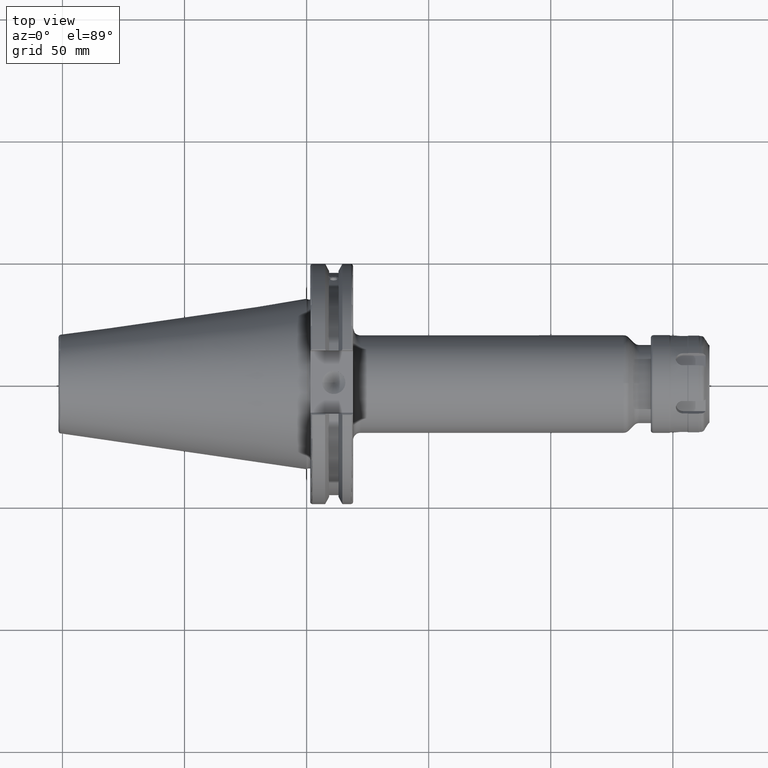
[diagram: clean part render]
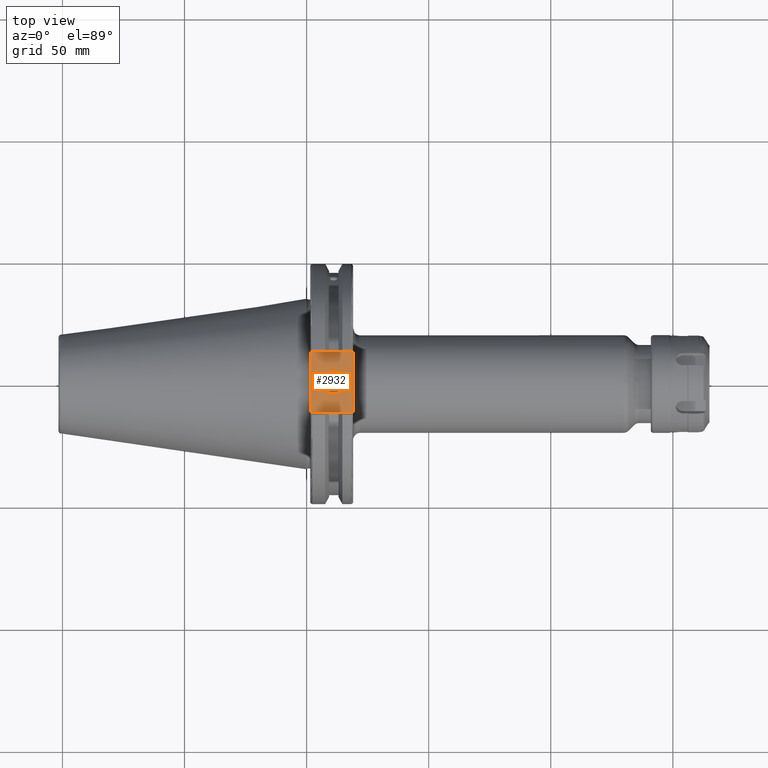
[diagram: same view with one face highlighted and labeled with its STEP entity id]
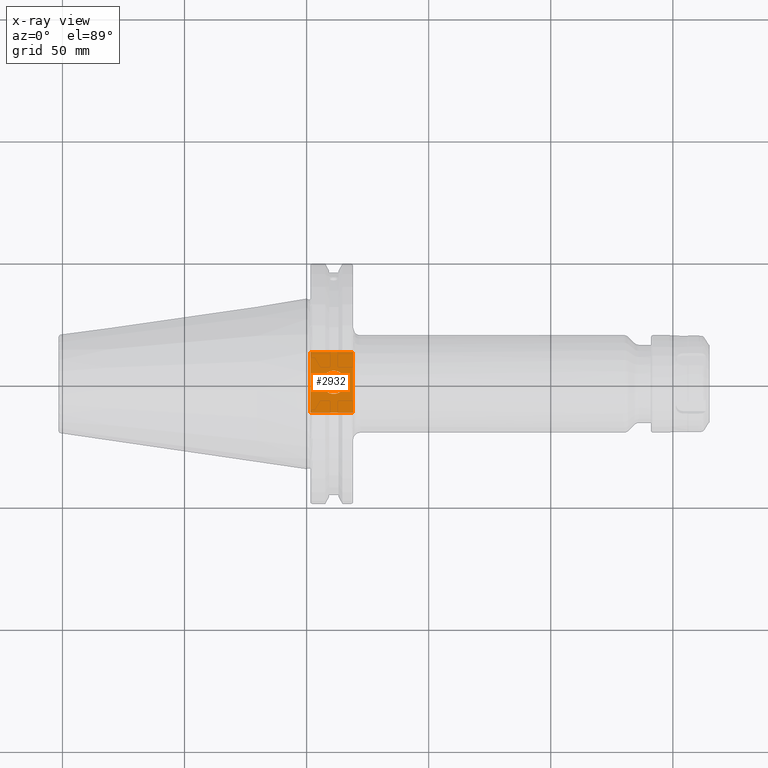
[diagram: x-ray of the same camera — body ghosted, the highlighted face saturated]
A machine part, top view. The second image highlights one B-rep face of the part: STEP entity #2932.
The next image is the same camera in x-ray: the body ghosted, the highlighted face saturated — about 0% of this face is hidden behind the body in this view.
In plain terms, the highlighted planar face has unit normal (0, 0, 1).
Its self-contained STEP definition (entity closure, byte-faithful):
#180=LINE('',#4365,#376);
#243=LINE('',#5162,#439);
#255=LINE('',#5207,#451);
#257=LINE('',#5210,#453);
#376=VECTOR('',#3506,10.);
#439=VECTOR('',#3753,10.);
#451=VECTOR('',#3795,10.);
#453=VECTOR('',#3799,10.);
#620=FACE_BOUND('',#949,.T.);
#659=PLANE('',#3248);
#768=FACE_OUTER_BOUND('',#948,.T.);
#948=EDGE_LOOP('',(#2386,#2387,#2388,#2389));
#949=EDGE_LOOP('',(#2390));
#1117=CIRCLE('',#3240,4.7625);
#1216=VERTEX_POINT('',#4362);
#1217=VERTEX_POINT('',#4364);
#1332=VERTEX_POINT('',#5159);
#1333=VERTEX_POINT('',#5161);
#1353=VERTEX_POINT('',#5246);
#1521=EDGE_CURVE('',#1216,#1217,#180,.T.);
#1683=EDGE_CURVE('',#1332,#1333,#243,.T.);
#1704=EDGE_CURVE('',#1217,#1332,#255,.T.);
#1706=EDGE_CURVE('',#1333,#1216,#257,.T.);
#1721=EDGE_CURVE('',#1353,#1353,#1117,.T.);
#2386=ORIENTED_EDGE('',*,*,#1704,.F.);
#2387=ORIENTED_EDGE('',*,*,#1521,.F.);
#2388=ORIENTED_EDGE('',*,*,#1706,.F.);
#2389=ORIENTED_EDGE('',*,*,#1683,.F.);
#2390=ORIENTED_EDGE('',*,*,#1721,.T.);
#2932=ADVANCED_FACE('',(#768,#620),#659,.T.);
#3240=AXIS2_PLACEMENT_3D('',#5247,#3834,#3835);
#3248=AXIS2_PLACEMENT_3D('',#5256,#3851,#3852);
#3506=DIRECTION('',(0.,-1.,0.));
#3753=DIRECTION('',(0.,1.,0.));
#3795=DIRECTION('',(-1.,1.19700595646917E-16,0.));
#3799=DIRECTION('',(1.,0.,0.));
#3834=DIRECTION('center_axis',(0.,0.,-1.));
#3835=DIRECTION('ref_axis',(1.,0.,0.));
#3851=DIRECTION('center_axis',(0.,0.,1.));
#3852=DIRECTION('ref_axis',(1.,0.,0.));
#4362=CARTESIAN_POINT('',(19.05,12.45,37.719));
#4364=CARTESIAN_POINT('',(19.05,-12.45,37.719));
#4365=CARTESIAN_POINT('',(19.05,0.,37.719));
#5159=CARTESIAN_POINT('',(1.5,-12.45,37.719));
#5161=CARTESIAN_POINT('',(1.5,12.45,37.719));
#5162=CARTESIAN_POINT('',(1.5,24.60625,37.719));
#5207=CARTESIAN_POINT('',(9.375,-12.45,37.719));
#5210=CARTESIAN_POINT('',(18.65,12.45,37.719));
#5246=CARTESIAN_POINT('',(6.3716,-5.83238038093927E-16,37.719));
#5247=CARTESIAN_POINT('Origin',(11.1341,0.,37.719));
#5256=CARTESIAN_POINT('Origin',(17.25,0.,37.719));